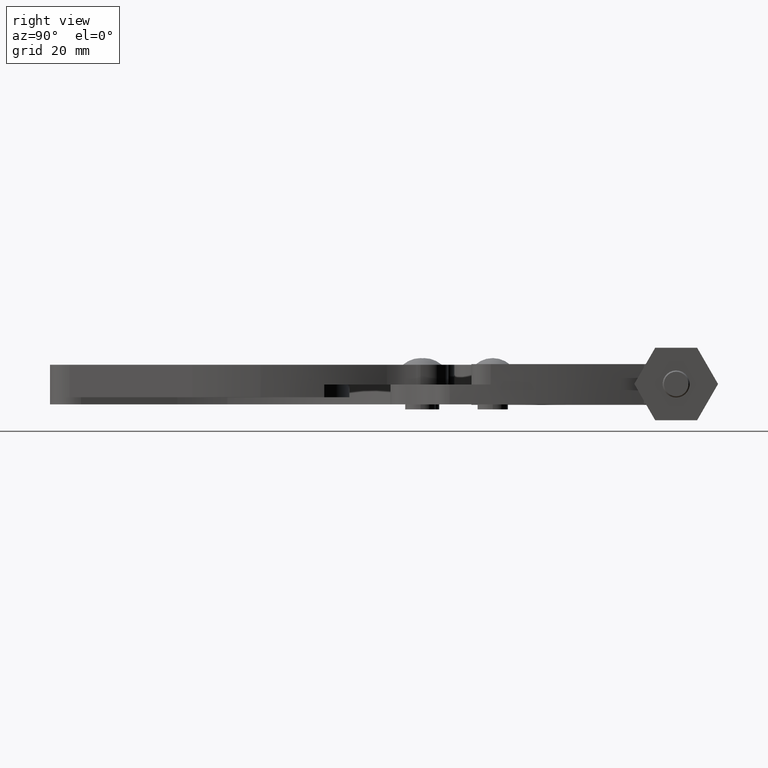
[diagram: clean part render]
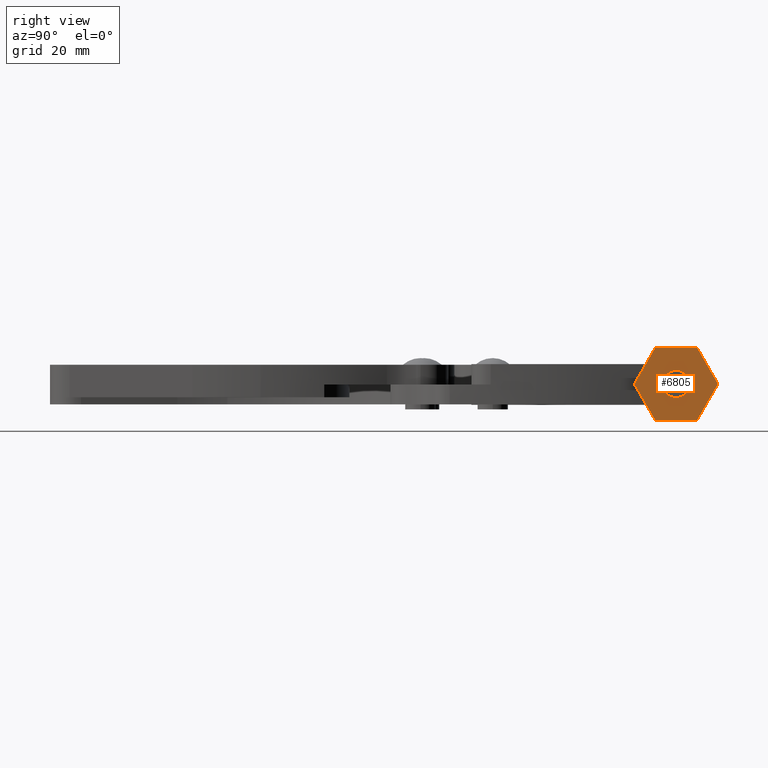
[diagram: same view with one face highlighted and labeled with its STEP entity id]
A machine part, right view. The second image highlights one B-rep face of the part: STEP entity #6805.
In plain terms, the highlighted planar face has unit normal (-1, 0, 0).
Its self-contained STEP definition (entity closure, byte-faithful):
#130 = DIRECTION ( 'NONE',  ( -1.000000000000000000, 0.0000000000000000000, 0.0000000000000000000 ) ) ;
#139 = LINE ( 'NONE', #4188, #5059 ) ;
#195 = DIRECTION ( 'NONE',  ( 0.0000000000000000000, 0.5000000000000040000, -0.8660254037844363800 ) ) ;
#280 = EDGE_CURVE ( 'NONE', #5344, #5232, #6472, .T. ) ;
#412 = DIRECTION ( 'NONE',  ( 0.0000000000000000000, -1.000000000000000000, 0.0000000000000000000 ) ) ;
#555 = AXIS2_PLACEMENT_3D ( 'NONE', #3468, #8147, #4124 ) ;
#637 = ORIENTED_EDGE ( 'NONE', *, *, #2334, .T. ) ;
#678 = DIRECTION ( 'NONE',  ( -1.000000000000000000, 0.0000000000000000000, 0.0000000000000000000 ) ) ;
#727 = CARTESIAN_POINT ( 'NONE',  ( 29.28799999999999000, 31.97922018868591100, 7.237400000000000100 ) ) ;
#804 = AXIS2_PLACEMENT_3D ( 'NONE', #5569, #130, #1480 ) ;
#912 = ORIENTED_EDGE ( 'NONE', *, *, #5421, .T. ) ;
#1056 = VECTOR ( 'NONE', #6287, 1000.000000000000100 ) ;
#1222 = EDGE_CURVE ( 'NONE', #6456, #2563, #3308, .T. ) ;
#1392 = ORIENTED_EDGE ( 'NONE', *, *, #6178, .T. ) ;
#1398 = FACE_BOUND ( 'NONE', #1813, .T. ) ;
#1480 = DIRECTION ( 'NONE',  ( 0.0000000000000000000, 0.0000000000000000000, 1.000000000000000000 ) ) ;
#1661 = DIRECTION ( 'NONE',  ( 0.0000000000000000000, -0.5000000000000021100, -0.8660254037844373800 ) ) ;
#1813 = EDGE_LOOP ( 'NONE', ( #7439, #1859 ) ) ;
#1859 = ORIENTED_EDGE ( 'NONE', *, *, #6932, .T. ) ;
#2087 = CARTESIAN_POINT ( 'NONE',  ( 29.28799999999999000, 36.09999999999997300, 2.771550000000486200 ) ) ;
#2334 = EDGE_CURVE ( 'NONE', #7192, #5850, #139, .T. ) ;
#2563 = VERTEX_POINT ( 'NONE', #3099 ) ;
#2594 = VECTOR ( 'NONE', #8520, 999.9999999999998900 ) ;
#2638 = PLANE ( 'NONE',  #5649 ) ;
#3019 = LINE ( 'NONE', #3814, #2594 ) ;
#3099 = CARTESIAN_POINT ( 'NONE',  ( 29.28799999999999000, 36.09999999999997300, -2.571549999999506000 ) ) ;
#3308 = CIRCLE ( 'NONE', #804, 2.671549999999995900 ) ;
#3426 = CARTESIAN_POINT ( 'NONE',  ( 29.28799999999999000, 31.97922018868592500, -7.037399999999997200 ) ) ;
#3468 = CARTESIAN_POINT ( 'NONE',  ( 29.28799999999999000, 36.09999999999997300, 0.1000000000004903600 ) ) ;
#3814 = CARTESIAN_POINT ( 'NONE',  ( 29.28799999999999000, 44.34155962262807500, 0.1000000000000043400 ) ) ;
#3844 = EDGE_LOOP ( 'NONE', ( #1392, #5386, #912, #637, #8329, #5627 ) ) ;
#4124 = DIRECTION ( 'NONE',  ( 0.0000000000000000000, 0.0000000000000000000, 1.000000000000000000 ) ) ;
#4158 = VECTOR ( 'NONE', #1661, 1000.000000000000200 ) ;
#4188 = CARTESIAN_POINT ( 'NONE',  ( 29.28799999999999000, 27.85844037737184900, 0.09999999999999688300 ) ) ;
#4238 = CARTESIAN_POINT ( 'NONE',  ( 29.28799999999999000, 31.97922018868591100, 7.237400000000000100 ) ) ;
#4672 = CARTESIAN_POINT ( 'NONE',  ( 29.28799999999999000, 44.34155962262807500, 0.1000000000000040000 ) ) ;
#4673 = VECTOR ( 'NONE', #412, 1000.000000000000000 ) ;
#4898 = CARTESIAN_POINT ( 'NONE',  ( 29.28799999999999000, 40.22077981131401700, -7.037399999999997200 ) ) ;
#5059 = VECTOR ( 'NONE', #195, 1000.000000000000100 ) ;
#5158 = LINE ( 'NONE', #6654, #6736 ) ;
#5232 = VERTEX_POINT ( 'NONE', #727 ) ;
#5320 = VERTEX_POINT ( 'NONE', #6201 ) ;
#5344 = VERTEX_POINT ( 'NONE', #7566 ) ;
#5354 = DIRECTION ( 'NONE',  ( 0.0000000000000000000, 0.0000000000000000000, 1.000000000000000000 ) ) ;
#5368 = EDGE_CURVE ( 'NONE', #5662, #5320, #6391, .T. ) ;
#5386 = ORIENTED_EDGE ( 'NONE', *, *, #280, .T. ) ;
#5421 = EDGE_CURVE ( 'NONE', #5232, #7192, #5971, .T. ) ;
#5569 = CARTESIAN_POINT ( 'NONE',  ( 29.28799999999999000, 36.09999999999997300, 0.1000000000004903600 ) ) ;
#5627 = ORIENTED_EDGE ( 'NONE', *, *, #5368, .T. ) ;
#5649 = AXIS2_PLACEMENT_3D ( 'NONE', #4672, #678, #5354 ) ;
#5662 = VERTEX_POINT ( 'NONE', #7253 ) ;
#5850 = VERTEX_POINT ( 'NONE', #3426 ) ;
#5971 = LINE ( 'NONE', #4238, #4158 ) ;
#6178 = EDGE_CURVE ( 'NONE', #5320, #5344, #3019, .T. ) ;
#6201 = CARTESIAN_POINT ( 'NONE',  ( 29.28799999999999000, 44.34155962262807500, 0.1000000000000043400 ) ) ;
#6287 = DIRECTION ( 'NONE',  ( 0.0000000000000000000, 0.5000000000000022200, 0.8660254037844372600 ) ) ;
#6391 = LINE ( 'NONE', #4898, #1056 ) ;
#6456 = VERTEX_POINT ( 'NONE', #2087 ) ;
#6469 = CARTESIAN_POINT ( 'NONE',  ( 29.28799999999999000, 27.85844037737184900, 0.09999999999999688300 ) ) ;
#6472 = LINE ( 'NONE', #7113, #4673 ) ;
#6528 = FACE_OUTER_BOUND ( 'NONE', #3844, .T. ) ;
#6538 = CIRCLE ( 'NONE', #555, 2.671549999999995900 ) ;
#6654 = CARTESIAN_POINT ( 'NONE',  ( 29.28799999999999000, 40.22077981131401700, -7.037399999999997200 ) ) ;
#6736 = VECTOR ( 'NONE', #7312, 1000.000000000000000 ) ;
#6781 = EDGE_CURVE ( 'NONE', #5662, #5850, #5158, .T. ) ;
#6805 = ADVANCED_FACE ( 'NONE', ( #1398, #6528 ), #2638, .F. ) ;
#6932 = EDGE_CURVE ( 'NONE', #2563, #6456, #6538, .T. ) ;
#7113 = CARTESIAN_POINT ( 'NONE',  ( 29.28799999999999000, 40.22077981131400300, 7.237400000000000100 ) ) ;
#7192 = VERTEX_POINT ( 'NONE', #6469 ) ;
#7253 = CARTESIAN_POINT ( 'NONE',  ( 29.28799999999999000, 40.22077981131401700, -7.037399999999997200 ) ) ;
#7312 = DIRECTION ( 'NONE',  ( 0.0000000000000000000, -1.000000000000000000, 0.0000000000000000000 ) ) ;
#7439 = ORIENTED_EDGE ( 'NONE', *, *, #1222, .T. ) ;
#7566 = CARTESIAN_POINT ( 'NONE',  ( 29.28799999999999000, 40.22077981131400300, 7.237400000000000100 ) ) ;
#8147 = DIRECTION ( 'NONE',  ( -1.000000000000000000, 0.0000000000000000000, 0.0000000000000000000 ) ) ;
#8329 = ORIENTED_EDGE ( 'NONE', *, *, #6781, .F. ) ;
#8520 = DIRECTION ( 'NONE',  ( 0.0000000000000000000, -0.5000000000000040000, 0.8660254037844363800 ) ) ;